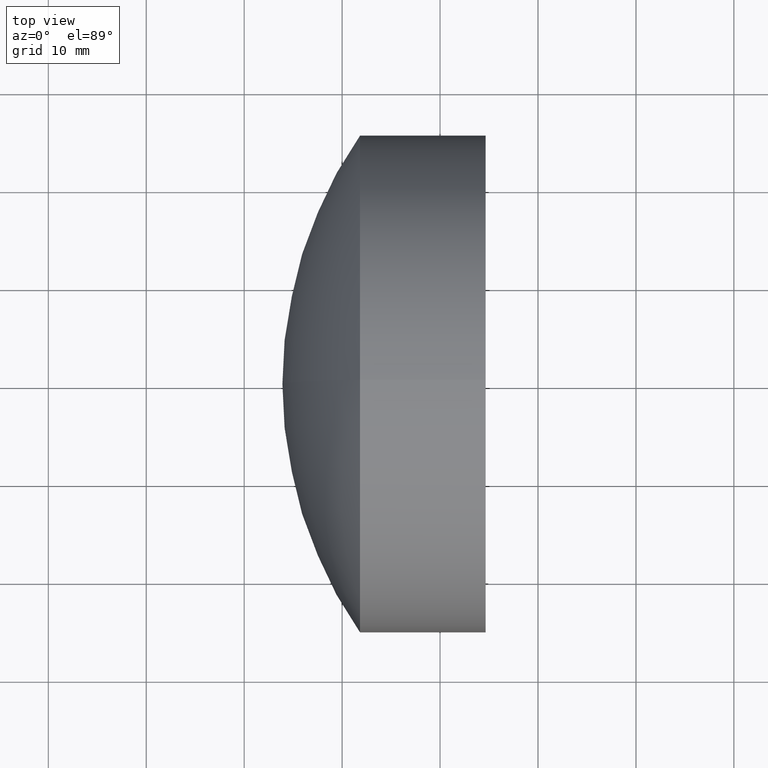
[diagram: clean part render]
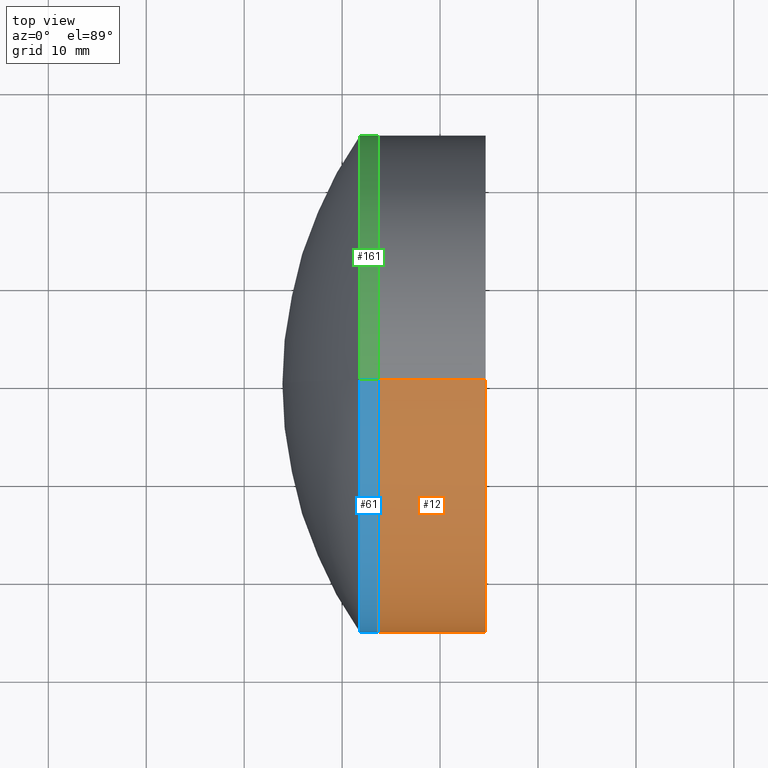
[diagram: same view with three faces highlighted in distinct colors, each labeled with its STEP entity id]
A machine part, top view with three faces highlighted in distinct colors.
Their STEP definitions:

[orange] entity #12 — the highlighted cylindrical surface (partial cylindrical patch) has radius 25.4 mm, axis along (-1, -0, -0).
#2 = CARTESIAN_POINT ( 'NONE',  ( 103.6840923325976700, 0.0000000000000000000, 25.39999999999998100 ) ) ;
#6 = EDGE_CURVE ( 'NONE', #330, #49, #326, .T. ) ;
#12 = ADVANCED_FACE ( 'NONE', ( #46 ), #89, .T. ) ;
#13 = DIRECTION ( 'NONE',  ( -1.000000000000000000, -0.0000000000000000000, -0.0000000000000000000 ) ) ;
#23 = DIRECTION ( 'NONE',  ( -1.000000000000000000, -0.0000000000000000000, -0.0000000000000000000 ) ) ;
#25 = DIRECTION ( 'NONE',  ( 0.0000000000000000000, 0.0000000000000000000, 1.000000000000000000 ) ) ;
#45 = VERTEX_POINT ( 'NONE', #2 ) ;
#46 = FACE_OUTER_BOUND ( 'NONE', #317, .T. ) ;
#49 = VERTEX_POINT ( 'NONE', #289 ) ;
#67 = EDGE_CURVE ( 'NONE', #184, #45, #213, .T. ) ;
#78 = AXIS2_PLACEMENT_3D ( 'NONE', #85, #204, #232 ) ;
#85 = CARTESIAN_POINT ( 'NONE',  ( -0.5519199926577972300, 0.0000000000000000000, 0.0000000000000000000 ) ) ;
#89 = CYLINDRICAL_SURFACE ( 'NONE', #78, 25.39999999999997700 ) ;
#92 = DIRECTION ( 'NONE',  ( 0.0000000000000000000, 0.0000000000000000000, 1.000000000000000000 ) ) ;
#128 = CARTESIAN_POINT ( 'NONE',  ( 103.6840923325976700, 0.0000000000000000000, 0.0000000000000000000 ) ) ;
#140 = EDGE_CURVE ( 'NONE', #49, #45, #249, .T. ) ;
#144 = EDGE_CURVE ( 'NONE', #330, #184, #247, .T. ) ;
#154 = VECTOR ( 'NONE', #159, 1000.000000000000000 ) ;
#159 = DIRECTION ( 'NONE',  ( -1.000000000000000000, -0.0000000000000000000, -0.0000000000000000000 ) ) ;
#165 = VECTOR ( 'NONE', #207, 1000.000000000000000 ) ;
#184 = VERTEX_POINT ( 'NONE', #268 ) ;
#198 = ORIENTED_EDGE ( 'NONE', *, *, #6, .T. ) ;
#204 = DIRECTION ( 'NONE',  ( -1.000000000000000000, -0.0000000000000000000, -0.0000000000000000000 ) ) ;
#207 = DIRECTION ( 'NONE',  ( -1.000000000000000000, -0.0000000000000000000, -0.0000000000000000000 ) ) ;
#213 = CIRCLE ( 'NONE', #230, 25.39999999999997700 ) ;
#221 = CARTESIAN_POINT ( 'NONE',  ( 114.6469018901007200, 0.0000000000000000000, 0.0000000000000000000 ) ) ;
#225 = ORIENTED_EDGE ( 'NONE', *, *, #140, .T. ) ;
#230 = AXIS2_PLACEMENT_3D ( 'NONE', #128, #23, #92 ) ;
#232 = DIRECTION ( 'NONE',  ( 0.0000000000000000000, 0.0000000000000000000, 1.000000000000000000 ) ) ;
#241 = CARTESIAN_POINT ( 'NONE',  ( -0.5519199926577972300, 0.0000000000000000000, 25.39999999999997700 ) ) ;
#247 = LINE ( 'NONE', #276, #165 ) ;
#249 = LINE ( 'NONE', #241, #154 ) ;
#267 = ORIENTED_EDGE ( 'NONE', *, *, #144, .F. ) ;
#268 = CARTESIAN_POINT ( 'NONE',  ( 103.6840923325976700, 3.110602869834274900E-015, -25.39999999999998100 ) ) ;
#276 = CARTESIAN_POINT ( 'NONE',  ( -0.5519199926577972300, 3.110602869834274500E-015, -25.39999999999997700 ) ) ;
#277 = ORIENTED_EDGE ( 'NONE', *, *, #67, .F. ) ;
#289 = CARTESIAN_POINT ( 'NONE',  ( 114.6469018901007100, -3.110602869834265800E-015, 25.39999999999991000 ) ) ;
#317 = EDGE_LOOP ( 'NONE', ( #267, #198, #225, #277 ) ) ;
#323 = AXIS2_PLACEMENT_3D ( 'NONE', #221, #13, #25 ) ;
#326 = CIRCLE ( 'NONE', #323, 25.39999999999997700 ) ;
#330 = VERTEX_POINT ( 'NONE', #334 ) ;
#334 = CARTESIAN_POINT ( 'NONE',  ( 114.6469018901007100, 0.0000000000000000000, -25.39999999999991000 ) ) ;

[blue] entity #61 — the highlighted cylindrical surface (partial cylindrical patch) has radius 25.4 mm, axis along (-1, -0, -0).
#17 = CARTESIAN_POINT ( 'NONE',  ( 103.6840923325976700, 0.0000000000000000000, 25.39999999999999500 ) ) ;
#21 = EDGE_LOOP ( 'NONE', ( #234, #162, #131, #297 ) ) ;
#40 = VERTEX_POINT ( 'NONE', #320 ) ;
#47 = CARTESIAN_POINT ( 'NONE',  ( -0.8160621761658039000, 3.110602869834276900E-015, -25.39999999999999900 ) ) ;
#48 = CARTESIAN_POINT ( 'NONE',  ( 101.8246115473529000, 0.0000000000000000000, 0.0000000000000000000 ) ) ;
#52 = DIRECTION ( 'NONE',  ( -1.000000000000000000, -0.0000000000000000000, -0.0000000000000000000 ) ) ;
#61 = ADVANCED_FACE ( 'NONE', ( #237 ), #70, .T. ) ;
#63 = VERTEX_POINT ( 'NONE', #150 ) ;
#70 = CYLINDRICAL_SURFACE ( 'NONE', #107, 25.39999999999999900 ) ;
#73 = DIRECTION ( 'NONE',  ( 0.0000000000000000000, 0.0000000000000000000, 1.000000000000000000 ) ) ;
#103 = AXIS2_PLACEMENT_3D ( 'NONE', #197, #176, #343 ) ;
#107 = AXIS2_PLACEMENT_3D ( 'NONE', #239, #318, #335 ) ;
#112 = DIRECTION ( 'NONE',  ( -1.000000000000000000, -0.0000000000000000000, -0.0000000000000000000 ) ) ;
#131 = ORIENTED_EDGE ( 'NONE', *, *, #223, .T. ) ;
#141 = VERTEX_POINT ( 'NONE', #182 ) ;
#150 = CARTESIAN_POINT ( 'NONE',  ( 101.8246115473529000, 3.110602869834276900E-015, -25.40000000000000600 ) ) ;
#157 = AXIS2_PLACEMENT_3D ( 'NONE', #48, #236, #73 ) ;
#162 = ORIENTED_EDGE ( 'NONE', *, *, #285, .T. ) ;
#176 = DIRECTION ( 'NONE',  ( -1.000000000000000000, -0.0000000000000000000, -0.0000000000000000000 ) ) ;
#182 = CARTESIAN_POINT ( 'NONE',  ( 101.8246115473529000, 0.0000000000000000000, 25.39999999999999900 ) ) ;
#197 = CARTESIAN_POINT ( 'NONE',  ( 103.6840923325976700, 0.0000000000000000000, 0.0000000000000000000 ) ) ;
#215 = CARTESIAN_POINT ( 'NONE',  ( -0.8160621761658039000, 0.0000000000000000000, 25.39999999999999900 ) ) ;
#223 = EDGE_CURVE ( 'NONE', #316, #141, #332, .T. ) ;
#234 = ORIENTED_EDGE ( 'NONE', *, *, #244, .F. ) ;
#236 = DIRECTION ( 'NONE',  ( -1.000000000000000000, -0.0000000000000000000, -0.0000000000000000000 ) ) ;
#237 = FACE_OUTER_BOUND ( 'NONE', #21, .T. ) ;
#238 = EDGE_CURVE ( 'NONE', #63, #141, #245, .T. ) ;
#239 = CARTESIAN_POINT ( 'NONE',  ( -0.8160621761658039000, 0.0000000000000000000, 0.0000000000000000000 ) ) ;
#244 = EDGE_CURVE ( 'NONE', #40, #63, #275, .T. ) ;
#245 = CIRCLE ( 'NONE', #157, 25.39999999999999900 ) ;
#257 = VECTOR ( 'NONE', #112, 1000.000000000000000 ) ;
#275 = LINE ( 'NONE', #47, #286 ) ;
#284 = CIRCLE ( 'NONE', #103, 25.39999999999999500 ) ;
#285 = EDGE_CURVE ( 'NONE', #40, #316, #284, .T. ) ;
#286 = VECTOR ( 'NONE', #52, 1000.000000000000000 ) ;
#297 = ORIENTED_EDGE ( 'NONE', *, *, #238, .F. ) ;
#316 = VERTEX_POINT ( 'NONE', #17 ) ;
#318 = DIRECTION ( 'NONE',  ( -1.000000000000000000, -0.0000000000000000000, -0.0000000000000000000 ) ) ;
#320 = CARTESIAN_POINT ( 'NONE',  ( 103.6840923325976700, 3.110602869834276500E-015, -25.39999999999999500 ) ) ;
#332 = LINE ( 'NONE', #215, #257 ) ;
#335 = DIRECTION ( 'NONE',  ( 0.0000000000000000000, 0.0000000000000000000, 1.000000000000000000 ) ) ;
#343 = DIRECTION ( 'NONE',  ( 0.0000000000000000000, 0.0000000000000000000, 1.000000000000000000 ) ) ;

[green] entity #161 — the highlighted cylindrical surface (partial cylindrical patch) has radius 25.4 mm, axis along (-1, -0, -0).
#16 = ORIENTED_EDGE ( 'NONE', *, *, #178, .F. ) ;
#17 = CARTESIAN_POINT ( 'NONE',  ( 103.6840923325976700, 0.0000000000000000000, 25.39999999999999500 ) ) ;
#22 = EDGE_CURVE ( 'NONE', #316, #40, #136, .T. ) ;
#24 = FACE_OUTER_BOUND ( 'NONE', #327, .T. ) ;
#35 = ORIENTED_EDGE ( 'NONE', *, *, #244, .T. ) ;
#40 = VERTEX_POINT ( 'NONE', #320 ) ;
#42 = AXIS2_PLACEMENT_3D ( 'NONE', #183, #155, #271 ) ;
#43 = CARTESIAN_POINT ( 'NONE',  ( -0.8160621761658039000, 0.0000000000000000000, 0.0000000000000000000 ) ) ;
#47 = CARTESIAN_POINT ( 'NONE',  ( -0.8160621761658039000, 3.110602869834276900E-015, -25.39999999999999900 ) ) ;
#52 = DIRECTION ( 'NONE',  ( -1.000000000000000000, -0.0000000000000000000, -0.0000000000000000000 ) ) ;
#60 = AXIS2_PLACEMENT_3D ( 'NONE', #166, #87, #328 ) ;
#63 = VERTEX_POINT ( 'NONE', #150 ) ;
#77 = DIRECTION ( 'NONE',  ( 0.0000000000000000000, 0.0000000000000000000, 1.000000000000000000 ) ) ;
#87 = DIRECTION ( 'NONE',  ( -1.000000000000000000, -0.0000000000000000000, -0.0000000000000000000 ) ) ;
#112 = DIRECTION ( 'NONE',  ( -1.000000000000000000, -0.0000000000000000000, -0.0000000000000000000 ) ) ;
#136 = CIRCLE ( 'NONE', #60, 25.39999999999999500 ) ;
#141 = VERTEX_POINT ( 'NONE', #182 ) ;
#150 = CARTESIAN_POINT ( 'NONE',  ( 101.8246115473529000, 3.110602869834276900E-015, -25.40000000000000600 ) ) ;
#155 = DIRECTION ( 'NONE',  ( -1.000000000000000000, -0.0000000000000000000, -0.0000000000000000000 ) ) ;
#161 = ADVANCED_FACE ( 'NONE', ( #24 ), #226, .T. ) ;
#166 = CARTESIAN_POINT ( 'NONE',  ( 103.6840923325976700, 0.0000000000000000000, 0.0000000000000000000 ) ) ;
#178 = EDGE_CURVE ( 'NONE', #141, #63, #181, .T. ) ;
#181 = CIRCLE ( 'NONE', #42, 25.39999999999999900 ) ;
#182 = CARTESIAN_POINT ( 'NONE',  ( 101.8246115473529000, 0.0000000000000000000, 25.39999999999999900 ) ) ;
#183 = CARTESIAN_POINT ( 'NONE',  ( 101.8246115473529000, 0.0000000000000000000, 0.0000000000000000000 ) ) ;
#195 = AXIS2_PLACEMENT_3D ( 'NONE', #43, #313, #77 ) ;
#215 = CARTESIAN_POINT ( 'NONE',  ( -0.8160621761658039000, 0.0000000000000000000, 25.39999999999999900 ) ) ;
#223 = EDGE_CURVE ( 'NONE', #316, #141, #332, .T. ) ;
#226 = CYLINDRICAL_SURFACE ( 'NONE', #195, 25.39999999999999900 ) ;
#243 = ORIENTED_EDGE ( 'NONE', *, *, #22, .T. ) ;
#244 = EDGE_CURVE ( 'NONE', #40, #63, #275, .T. ) ;
#257 = VECTOR ( 'NONE', #112, 1000.000000000000000 ) ;
#271 = DIRECTION ( 'NONE',  ( 0.0000000000000000000, 0.0000000000000000000, 1.000000000000000000 ) ) ;
#275 = LINE ( 'NONE', #47, #286 ) ;
#286 = VECTOR ( 'NONE', #52, 1000.000000000000000 ) ;
#313 = DIRECTION ( 'NONE',  ( -1.000000000000000000, -0.0000000000000000000, -0.0000000000000000000 ) ) ;
#316 = VERTEX_POINT ( 'NONE', #17 ) ;
#320 = CARTESIAN_POINT ( 'NONE',  ( 103.6840923325976700, 3.110602869834276500E-015, -25.39999999999999500 ) ) ;
#327 = EDGE_LOOP ( 'NONE', ( #243, #35, #16, #341 ) ) ;
#328 = DIRECTION ( 'NONE',  ( 0.0000000000000000000, 0.0000000000000000000, 1.000000000000000000 ) ) ;
#332 = LINE ( 'NONE', #215, #257 ) ;
#341 = ORIENTED_EDGE ( 'NONE', *, *, #223, .F. ) ;